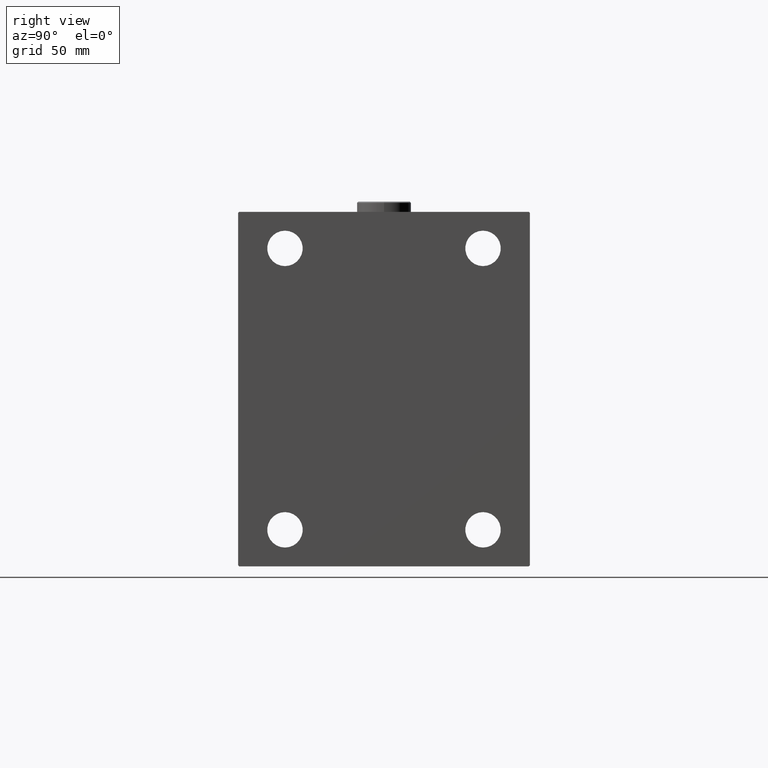
[diagram: clean part render]
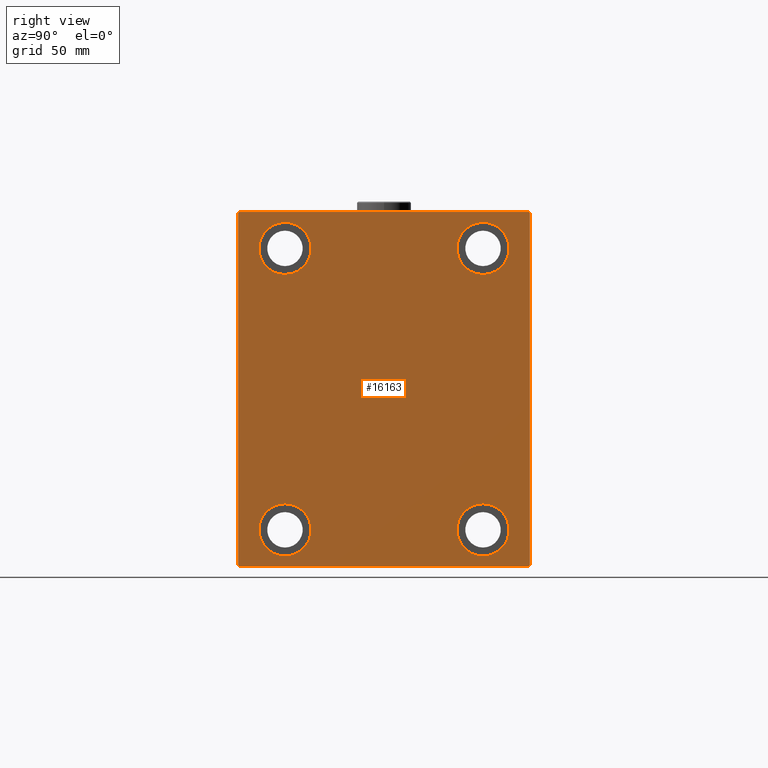
[diagram: same view with one face highlighted and labeled with its STEP entity id]
A machine part, right view. The second image highlights one B-rep face of the part: STEP entity #16163.
In plain terms, the highlighted planar face has unit normal (1, 0, 0).
Its self-contained STEP definition (entity closure, byte-faithful):
#99 = CARTESIAN_POINT ( 'NONE',  ( 255.0000000000000000, 47.50000000000000711, -67.50000000000000000 ) ) ;
#182 = ORIENTED_EDGE ( 'NONE', *, *, #33698, .T. ) ;
#243 = CIRCLE ( 'NONE', #37595, 12.49999999999999645 ) ;
#347 = VERTEX_POINT ( 'NONE', #27997 ) ;
#947 = CIRCLE ( 'NONE', #2437, 12.50000000000001066 ) ;
#987 = AXIS2_PLACEMENT_3D ( 'NONE', #5289, #29127, #1852 ) ;
#1193 = EDGE_CURVE ( 'NONE', #36943, #19174, #5588, .T. ) ;
#1454 = DIRECTION ( 'NONE',  ( 0.000000000000000000, -0.7071067811865474617, -0.7071067811865474617 ) ) ;
#1580 = CARTESIAN_POINT ( 'NONE',  ( 255.0000000000000000, -47.49999999999997868, 80.00000000000001421 ) ) ;
#1674 = CARTESIAN_POINT ( 'NONE',  ( 255.0000000000000000, 69.50000000000012790, -85.00000000000001421 ) ) ;
#1792 = DIRECTION ( 'NONE',  ( 0.000000000000000000, 0.000000000000000000, -1.000000000000000000 ) ) ;
#1834 = ORIENTED_EDGE ( 'NONE', *, *, #35613, .T. ) ;
#1852 = DIRECTION ( 'NONE',  ( 0.000000000000000000, 0.000000000000000000, 1.000000000000000000 ) ) ;
#1881 = EDGE_CURVE ( 'NONE', #23340, #37892, #34621, .T. ) ;
#1970 = CARTESIAN_POINT ( 'NONE',  ( 255.0000000000000000, -47.49999999999999289, -67.50000000000000000 ) ) ;
#2063 = DIRECTION ( 'NONE',  ( 0.000000000000000000, 0.000000000000000000, -1.000000000000000000 ) ) ;
#2312 = DIRECTION ( 'NONE',  ( -0.000000000000000000, 0.7071067811865376918, -0.7071067811865573427 ) ) ;
#2368 = EDGE_CURVE ( 'NONE', #21607, #7353, #243, .T. ) ;
#2437 = AXIS2_PLACEMENT_3D ( 'NONE', #39774, #9736, #30142 ) ;
#3335 = DIRECTION ( 'NONE',  ( 0.000000000000000000, -8.163404592832031500E-17, 1.000000000000000000 ) ) ;
#3651 = EDGE_CURVE ( 'NONE', #21319, #10726, #44187, .T. ) ;
#3748 = ORIENTED_EDGE ( 'NONE', *, *, #12196, .T. ) ;
#4898 = EDGE_CURVE ( 'NONE', #347, #36943, #19742, .T. ) ;
#4911 = ORIENTED_EDGE ( 'NONE', *, *, #5907, .T. ) ;
#5289 = CARTESIAN_POINT ( 'NONE',  ( 255.0000000000000000, 47.50000000000000711, 67.50000000000000000 ) ) ;
#5396 = VERTEX_POINT ( 'NONE', #28356 ) ;
#5588 = LINE ( 'NONE', #11555, #30953 ) ;
#5676 = CARTESIAN_POINT ( 'NONE',  ( 255.0000000000000000, -69.50000000000001421, -85.00000000000002842 ) ) ;
#5907 = EDGE_CURVE ( 'NONE', #32409, #22035, #15008, .T. ) ;
#6772 = CARTESIAN_POINT ( 'NONE',  ( 255.0000000000000000, 70.00000000000002842, -85.00000000000001421 ) ) ;
#7002 = DIRECTION ( 'NONE',  ( 0.000000000000000000, 0.000000000000000000, 1.000000000000000000 ) ) ;
#7353 = VERTEX_POINT ( 'NONE', #33024 ) ;
#7920 = EDGE_CURVE ( 'NONE', #37892, #23340, #39911, .T. ) ;
#7952 = CARTESIAN_POINT ( 'NONE',  ( 255.0000000000000000, 70.00000000000001421, 85.00000000000000000 ) ) ;
#8388 = CIRCLE ( 'NONE', #11310, 12.50000000000001066 ) ;
#8703 = CARTESIAN_POINT ( 'NONE',  ( 255.0000000000000000, 47.50000000000000711, 80.00000000000001421 ) ) ;
#9211 = CARTESIAN_POINT ( 'NONE',  ( 255.0000000000000000, -69.50000000000001421, 84.99999999999998579 ) ) ;
#9736 = DIRECTION ( 'NONE',  ( -1.000000000000000000, -0.000000000000000000, -0.000000000000000000 ) ) ;
#10074 = CARTESIAN_POINT ( 'NONE',  ( 255.0000000000000000, 47.50000000000000711, 55.00000000000000000 ) ) ;
#10294 = EDGE_CURVE ( 'NONE', #12987, #5396, #8388, .T. ) ;
#10492 = EDGE_LOOP ( 'NONE', ( #39577, #32480 ) ) ;
#10726 = VERTEX_POINT ( 'NONE', #10074 ) ;
#11310 = AXIS2_PLACEMENT_3D ( 'NONE', #11804, #22803, #18912 ) ;
#11335 = CARTESIAN_POINT ( 'NONE',  ( 255.0000000000000000, 69.50000000000004263, 85.00000000000000000 ) ) ;
#11555 = CARTESIAN_POINT ( 'NONE',  ( 255.0000000000000000, -69.99999999999998579, -85.00000000000002842 ) ) ;
#11804 = CARTESIAN_POINT ( 'NONE',  ( 255.0000000000000000, -47.49999999999997868, 67.50000000000000000 ) ) ;
#12165 = FACE_BOUND ( 'NONE', #24322, .T. ) ;
#12196 = EDGE_CURVE ( 'NONE', #7353, #21607, #20795, .T. ) ;
#12263 = VERTEX_POINT ( 'NONE', #11335 ) ;
#12283 = CARTESIAN_POINT ( 'NONE',  ( 255.0000000000000000, -47.49999999999999289, -55.00000000000000711 ) ) ;
#12832 = AXIS2_PLACEMENT_3D ( 'NONE', #1970, #15736, #29707 ) ;
#12987 = VERTEX_POINT ( 'NONE', #1580 ) ;
#13102 = ORIENTED_EDGE ( 'NONE', *, *, #1193, .T. ) ;
#13164 = CARTESIAN_POINT ( 'NONE',  ( 255.0000000000000000, -69.99999999999998579, 84.50000000000001421 ) ) ;
#13206 = DIRECTION ( 'NONE',  ( 0.000000000000000000, 0.000000000000000000, 1.000000000000000000 ) ) ;
#13551 = VECTOR ( 'NONE', #1454, 1000.000000000000114 ) ;
#14142 = ORIENTED_EDGE ( 'NONE', *, *, #2368, .T. ) ;
#14641 = ORIENTED_EDGE ( 'NONE', *, *, #41401, .T. ) ;
#15008 = LINE ( 'NONE', #28972, #13551 ) ;
#15150 = PLANE ( 'NONE',  #43072 ) ;
#15281 = DIRECTION ( 'NONE',  ( 0.000000000000000000, -1.000000000000000000, -9.912705577010325549E-17 ) ) ;
#15303 = ORIENTED_EDGE ( 'NONE', *, *, #10294, .T. ) ;
#15636 = ORIENTED_EDGE ( 'NONE', *, *, #3651, .T. ) ;
#15727 = CARTESIAN_POINT ( 'NONE',  ( 255.0000000000000000, 70.00000000000002842, -84.50000000000009948 ) ) ;
#15736 = DIRECTION ( 'NONE',  ( -1.000000000000000000, -0.000000000000000000, -0.000000000000000000 ) ) ;
#16057 = DIRECTION ( 'NONE',  ( 1.000000000000000000, 0.000000000000000000, 0.000000000000000000 ) ) ;
#16163 = ADVANCED_FACE ( 'NONE', ( #33465, #43319, #12165, #19261, #40578 ), #15150, .T. ) ;
#17135 = VECTOR ( 'NONE', #3335, 1000.000000000000000 ) ;
#17951 = CARTESIAN_POINT ( 'NONE',  ( 255.0000000000000000, 47.50000000000000711, -67.50000000000000000 ) ) ;
#18106 = CARTESIAN_POINT ( 'NONE',  ( 255.0000000000000000, 77.25000000000103739, -77.24999999999890576 ) ) ;
#18514 = EDGE_LOOP ( 'NONE', ( #41474, #15303 ) ) ;
#18589 = EDGE_CURVE ( 'NONE', #22035, #347, #33424, .T. ) ;
#18912 = DIRECTION ( 'NONE',  ( 0.000000000000000000, 0.000000000000000000, 1.000000000000000000 ) ) ;
#18932 = VERTEX_POINT ( 'NONE', #15727 ) ;
#19174 = VERTEX_POINT ( 'NONE', #1674 ) ;
#19261 = FACE_BOUND ( 'NONE', #10492, .T. ) ;
#19742 = LINE ( 'NONE', #44024, #25223 ) ;
#20795 = CIRCLE ( 'NONE', #40064, 12.49999999999999645 ) ;
#21312 = DIRECTION ( 'NONE',  ( 0.000000000000000000, 0.000000000000000000, 1.000000000000000000 ) ) ;
#21319 = VERTEX_POINT ( 'NONE', #8703 ) ;
#21607 = VERTEX_POINT ( 'NONE', #29497 ) ;
#21872 = ORIENTED_EDGE ( 'NONE', *, *, #22266, .T. ) ;
#22035 = VERTEX_POINT ( 'NONE', #13164 ) ;
#22266 = EDGE_CURVE ( 'NONE', #19174, #18932, #29620, .T. ) ;
#22484 = CARTESIAN_POINT ( 'NONE',  ( 255.0000000000000000, 70.00000000000001421, 84.50000000000001421 ) ) ;
#22803 = DIRECTION ( 'NONE',  ( -1.000000000000000000, -0.000000000000000000, -0.000000000000000000 ) ) ;
#23340 = VERTEX_POINT ( 'NONE', #30669 ) ;
#24322 = EDGE_LOOP ( 'NONE', ( #182, #15636 ) ) ;
#24853 = DIRECTION ( 'NONE',  ( -1.000000000000000000, -0.000000000000000000, -0.000000000000000000 ) ) ;
#25223 = VECTOR ( 'NONE', #2312, 1000.000000000000114 ) ;
#25645 = DIRECTION ( 'NONE',  ( -0.000000000000000000, 0.7071067811865376918, 0.7071067811865574537 ) ) ;
#26445 = DIRECTION ( 'NONE',  ( 0.000000000000000000, 1.000000000000000000, 9.912705577010325549E-17 ) ) ;
#26779 = CARTESIAN_POINT ( 'NONE',  ( 255.0000000000000000, -69.99999999999998579, 84.99999999999998579 ) ) ;
#27997 = CARTESIAN_POINT ( 'NONE',  ( 255.0000000000000000, -69.99999999999998579, -84.50000000000004263 ) ) ;
#28177 = CARTESIAN_POINT ( 'NONE',  ( 255.0000000000000000, -47.49999999999997868, 67.50000000000000000 ) ) ;
#28356 = CARTESIAN_POINT ( 'NONE',  ( 255.0000000000000000, -47.49999999999997868, 55.00000000000000000 ) ) ;
#28507 = VECTOR ( 'NONE', #1792, 1000.000000000000000 ) ;
#28803 = LINE ( 'NONE', #7952, #40686 ) ;
#28972 = CARTESIAN_POINT ( 'NONE',  ( 255.0000000000000000, -77.25000000000001421, 77.25000000000001421 ) ) ;
#29127 = DIRECTION ( 'NONE',  ( -1.000000000000000000, -0.000000000000000000, -0.000000000000000000 ) ) ;
#29497 = CARTESIAN_POINT ( 'NONE',  ( 255.0000000000000000, 47.50000000000000711, -55.00000000000000711 ) ) ;
#29620 = LINE ( 'NONE', #18106, #34482 ) ;
#29707 = DIRECTION ( 'NONE',  ( 0.000000000000000000, 0.000000000000000000, 1.000000000000000000 ) ) ;
#30029 = ORIENTED_EDGE ( 'NONE', *, *, #4898, .T. ) ;
#30142 = DIRECTION ( 'NONE',  ( 0.000000000000000000, 0.000000000000000000, 1.000000000000000000 ) ) ;
#30669 = CARTESIAN_POINT ( 'NONE',  ( 255.0000000000000000, -47.49999999999999289, -80.00000000000000000 ) ) ;
#30953 = VECTOR ( 'NONE', #26445, 1000.000000000000000 ) ;
#32011 = LINE ( 'NONE', #33132, #39048 ) ;
#32409 = VERTEX_POINT ( 'NONE', #9211 ) ;
#32480 = ORIENTED_EDGE ( 'NONE', *, *, #7920, .T. ) ;
#32559 = CARTESIAN_POINT ( 'NONE',  ( 255.0000000000000000, 0.000000000000000000, 0.000000000000000000 ) ) ;
#33024 = CARTESIAN_POINT ( 'NONE',  ( 255.0000000000000000, 47.50000000000000711, -80.00000000000000000 ) ) ;
#33132 = CARTESIAN_POINT ( 'NONE',  ( 255.0000000000000000, 77.25000000000099476, 77.24999999999884892 ) ) ;
#33424 = LINE ( 'NONE', #26779, #28507 ) ;
#33465 = FACE_BOUND ( 'NONE', #45122, .T. ) ;
#33698 = EDGE_CURVE ( 'NONE', #10726, #21319, #947, .T. ) ;
#34266 = EDGE_CURVE ( 'NONE', #5396, #12987, #36097, .T. ) ;
#34482 = VECTOR ( 'NONE', #25645, 999.9999999999998863 ) ;
#34516 = DIRECTION ( 'NONE',  ( -1.000000000000000000, -0.000000000000000000, -0.000000000000000000 ) ) ;
#34621 = CIRCLE ( 'NONE', #40468, 12.49999999999999645 ) ;
#34679 = EDGE_LOOP ( 'NONE', ( #14641, #4911, #35238, #30029, #13102, #21872, #1834, #45092 ) ) ;
#34699 = EDGE_CURVE ( 'NONE', #39866, #12263, #32011, .T. ) ;
#35238 = ORIENTED_EDGE ( 'NONE', *, *, #18589, .T. ) ;
#35592 = DIRECTION ( 'NONE',  ( -1.000000000000000000, -0.000000000000000000, -0.000000000000000000 ) ) ;
#35613 = EDGE_CURVE ( 'NONE', #18932, #39866, #38167, .T. ) ;
#36097 = CIRCLE ( 'NONE', #43422, 12.50000000000001066 ) ;
#36943 = VERTEX_POINT ( 'NONE', #5676 ) ;
#37595 = AXIS2_PLACEMENT_3D ( 'NONE', #17951, #35592, #43590 ) ;
#37892 = VERTEX_POINT ( 'NONE', #12283 ) ;
#37956 = CARTESIAN_POINT ( 'NONE',  ( 255.0000000000000000, -47.49999999999999289, -67.50000000000000000 ) ) ;
#38167 = LINE ( 'NONE', #6772, #17135 ) ;
#39048 = VECTOR ( 'NONE', #40241, 1000.000000000000114 ) ;
#39577 = ORIENTED_EDGE ( 'NONE', *, *, #1881, .T. ) ;
#39774 = CARTESIAN_POINT ( 'NONE',  ( 255.0000000000000000, 47.50000000000000711, 67.50000000000000000 ) ) ;
#39866 = VERTEX_POINT ( 'NONE', #22484 ) ;
#39911 = CIRCLE ( 'NONE', #12832, 12.49999999999999645 ) ;
#40064 = AXIS2_PLACEMENT_3D ( 'NONE', #99, #24853, #7002 ) ;
#40241 = DIRECTION ( 'NONE',  ( -0.000000000000000000, -0.7071067811865376918, 0.7071067811865573427 ) ) ;
#40468 = AXIS2_PLACEMENT_3D ( 'NONE', #37956, #34516, #13206 ) ;
#40578 = FACE_OUTER_BOUND ( 'NONE', #34679, .T. ) ;
#40686 = VECTOR ( 'NONE', #15281, 1000.000000000000000 ) ;
#41401 = EDGE_CURVE ( 'NONE', #12263, #32409, #28803, .T. ) ;
#41474 = ORIENTED_EDGE ( 'NONE', *, *, #34266, .T. ) ;
#42161 = DIRECTION ( 'NONE',  ( -1.000000000000000000, -0.000000000000000000, -0.000000000000000000 ) ) ;
#43072 = AXIS2_PLACEMENT_3D ( 'NONE', #32559, #16057, #2063 ) ;
#43319 = FACE_BOUND ( 'NONE', #18514, .T. ) ;
#43422 = AXIS2_PLACEMENT_3D ( 'NONE', #28177, #42161, #21312 ) ;
#43590 = DIRECTION ( 'NONE',  ( 0.000000000000000000, 0.000000000000000000, 1.000000000000000000 ) ) ;
#44024 = CARTESIAN_POINT ( 'NONE',  ( 255.0000000000000000, -77.25000000000099476, -77.24999999999884892 ) ) ;
#44187 = CIRCLE ( 'NONE', #987, 12.50000000000001066 ) ;
#45092 = ORIENTED_EDGE ( 'NONE', *, *, #34699, .T. ) ;
#45122 = EDGE_LOOP ( 'NONE', ( #3748, #14142 ) ) ;